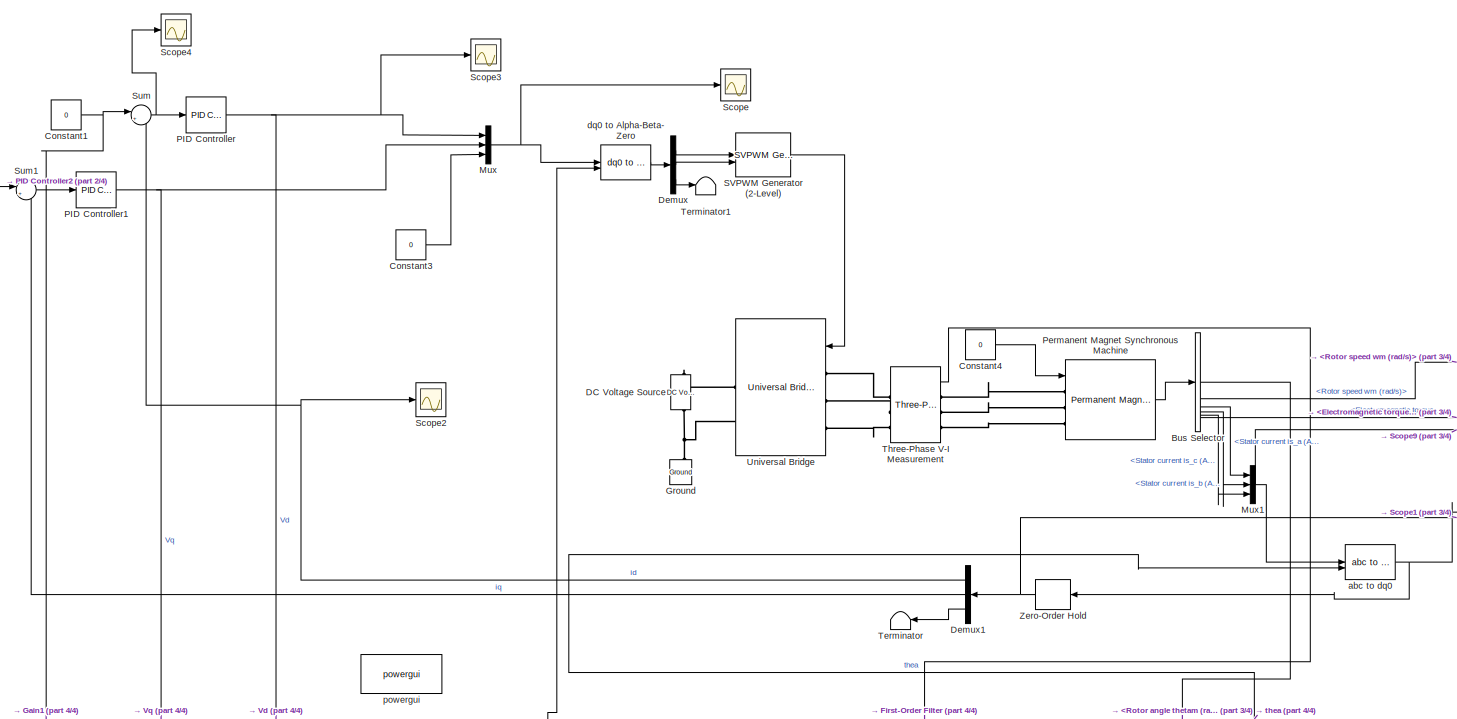
[diagram: root canvas - part 1/4, top center region]
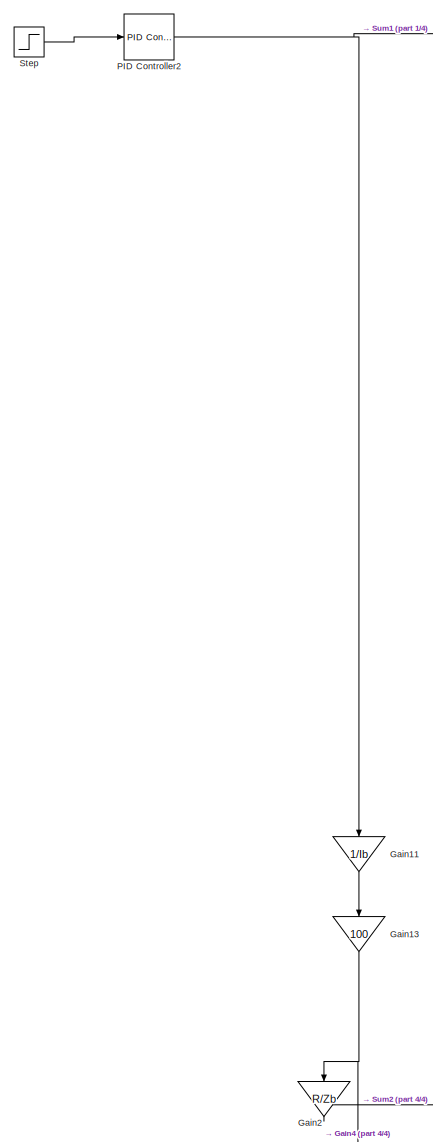
[diagram: root canvas - part 2/4, left side, full height]
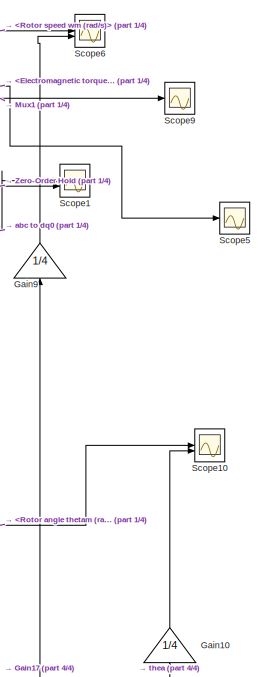
[diagram: root canvas - part 3/4, middle right region]
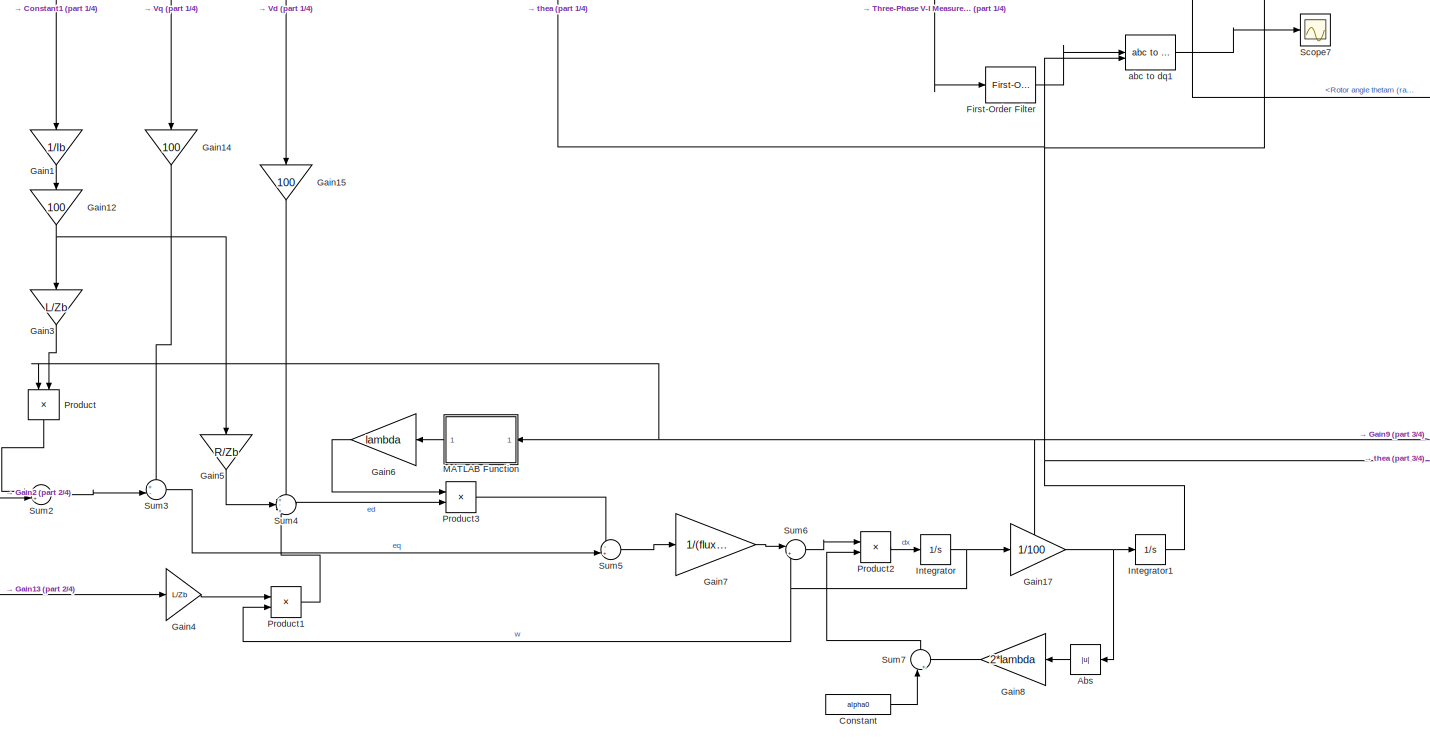
[diagram: root canvas - part 4/4, bottom center region]
MODEL slx_28778b5169e3
KIND model
CONFIG AbsTol = auto
CONFIG EnableMultiTasking = off
CONFIG FixedStep = 0.0000001
CONFIG MaxStep = auto
CONFIG MinStep = auto
CONFIG RelTol = 1e-3
CONFIG SampleTimeConstraint = Unconstrained
CONFIG SolverName = ode23
CONFIG StartTime = 0.0
CONFIG StopTime = 0.4
BLOCK [Abs] Abs
  NameLocation = top
  SaturateOnIntegerOverflow = off
  ZeroCross = off
BLOCK [BusSelector] Bus Selector
  OutputSignals = Rotor angle thetam (rad),Rotor speed wm (rad/s),Stator current is_a (A),Stator current is_b (A),Stator current is_c (A),Electromagnetic torque Te (N*m)
BLOCK [Constant] Constant
  Value = alpha0
BLOCK [Constant] Constant1
  Value = 0
BLOCK [Constant] Constant3
  Value = 0
BLOCK [Constant] Constant4
  Value = 0
BLOCK [Reference] DC Voltage Source  REF=spsDCVoltageSourceLib/DC Voltage Source
  LibrarySourceBlock = sps_lib/Sources/DC Voltage Source
  SourceBlock = spsDCVoltageSourceLib/DC Voltage Source
  SourceType = DC Voltage Source
BLOCK [Demux] Demux
  Outputs = 3
BLOCK [Demux] Demux1
  NameLocation = top
  Outputs = 3
BLOCK [Reference] First-Order Filter  REF=spsFirstOrderFilterLib/First-Order
Filter
  LibrarySourceBlock = sps_lib/Control/Filters/First-Order\nFilter
  SourceBlock = spsFirstOrderFilterLib/First-Order\nFilter
  SourceType = First-Order Filter
BLOCK [Gain] Gain1
  Gain = 1/Ib
  NameLocation = left
BLOCK [Gain] Gain10
  Gain = 1/4
  NameLocation = right
BLOCK [Gain] Gain11
  Gain = 1/Ib
  NameLocation = left
BLOCK [Gain] Gain12
  Gain = 100
  NameLocation = left
BLOCK [Gain] Gain13
  Gain = 100
  NameLocation = left
BLOCK [Gain] Gain14
  Gain = 100
  NameLocation = left
BLOCK [Gain] Gain15
  Gain = 100
  NameLocation = left
BLOCK [Gain] Gain17
  Gain = 1/100
BLOCK [Gain] Gain2
  Gain = R/Zb
  NameLocation = left
BLOCK [Gain] Gain3
  Gain = L/Zb
  NameLocation = left
BLOCK [Gain] Gain4
  Gain = L/Zb
BLOCK [Gain] Gain5
  Gain = R/Zb
  NameLocation = left
BLOCK [Gain] Gain6
  Gain = lambda
  NameLocation = top
BLOCK [Gain] Gain7
  Gain = 1/(flux/Fb)
BLOCK [Gain] Gain8
  Gain = 2*lambda
  NameLocation = top
BLOCK [Gain] Gain9
  Gain = 1/4
  NameLocation = right
BLOCK [Reference] Ground  REF=spsGroundLib/Ground
  LibrarySourceBlock = sps_lib/Utilities/Ground
  NameLocation = right
  SourceBlock = spsGroundLib/Ground
  SourceType = Ground
BLOCK [Integrator] Integrator
BLOCK [Integrator] Integrator1
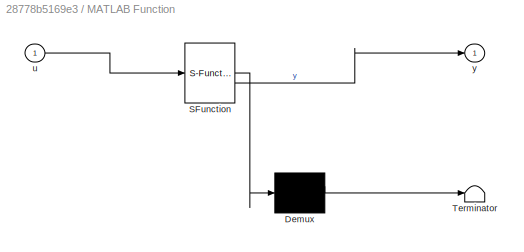
BLOCK [SubSystem] MATLAB Function
  ErrorFcn = Stateflow.Translate.translate
  NameLocation = top
  PermitHierarchicalResolution = ExplicitOnly
  SFBlockType = MATLAB Function
  TreatAsAtomicUnit = on
BLOCK [Demux] MATLAB Function/ Demux 
  Outputs = 1
BLOCK [S-Function] MATLAB Function/ SFunction 
  EnableBusSupport = on
  FunctionName = sf_sfun
  PortCounts = [1 2]
  SFcnIsStateOwnerBlock = off
  SFunctionDeploymentMode = off
  Tag = Stateflow S-Function 2
BLOCK [Terminator] MATLAB Function/ Terminator 
BLOCK [Inport] MATLAB Function/u
BLOCK [Outport] MATLAB Function/y
BLOCK [Mux] Mux
  DisplayOption = bar
  Inputs = 3
BLOCK [Mux] Mux1
  DisplayOption = bar
  Inputs = 3
BLOCK [Reference] PID Controller  REF=slpidlib/PID Controller
  LibrarySourceBlock = simulink/Continuous/PID Controller
  SourceBlock = slpidlib/PID Controller
  SourceType = PID 1dof
BLOCK [Reference] PID Controller1  REF=slpidlib/PID Controller
  LibrarySourceBlock = simulink/Continuous/PID Controller
  SourceBlock = slpidlib/PID Controller
  SourceType = PID 1dof
BLOCK [Reference] PID Controller2  REF=slpidlib/PID Controller
  LibrarySourceBlock = simulink/Continuous/PID Controller
  SourceBlock = slpidlib/PID Controller
  SourceType = PID 1dof
BLOCK [Reference] Permanent Magnet Synchronous Machine  REF=spsPermanentMagnetSynchronousMachineLib/Permanent Magnet
Synchronous Machine
  LibrarySourceBlock = sps_lib/Electrical Machines/Permanent Magnet\nSynchronous Machine
  SourceBlock = spsPermanentMagnetSynchronousMachineLib/Permanent Magnet\nSynchronous Machine
  SourceType = Permanent Magnet Synchronous Machine
BLOCK [Product] Product
  NameLocation = left
BLOCK [Product] Product1
BLOCK [Product] Product2
BLOCK [Product] Product3
BLOCK [Reference] SVPWM Generator (2-Level)  REF=spsSVPWMGenerator2LevelLib/SVPWM Generator
(2-Level)
  LibrarySourceBlock = sps_lib/Power Electronics/Power Electronics Control/SVPWM Generator\n(2-Level)
  SourceBlock = spsSVPWMGenerator2LevelLib/SVPWM Generator\n(2-Level)
  SourceType = SVPWM Generator (2-Level)
BLOCK [Scope] Scope
  Floating = off
  NumInputPorts = 1
  ScopeSpecificationString = Simulink.scopes.TimeScopeBlockCfg('CurrentConfiguration', extmgr.ConfigurationSet(extmgr.Configuration('Core','General UI',true),extmgr.Configuration('Core','Source UI',true),extmgr.Configuration('Sources','WiredSimulink',true),extmgr.Configuration('Visuals','Time Domain',true,'SerializedDisplays',{struct('MinYLimReal','-0.1402','MaxYLimReal','1.12669','YLabelReal','','MinYLimMag','0.00000','MaxYL...<+1740ch>
BLOCK [Scope] Scope1
  Floating = off
  NumInputPorts = 2
  ScopeSpecificationString = Simulink.scopes.TimeScopeBlockCfg('CurrentConfiguration', extmgr.ConfigurationSet(extmgr.Configuration('Core','General UI',true),extmgr.Configuration('Core','Source UI',true),extmgr.Configuration('Sources','WiredSimulink',true,'DataLoggingVariableName','ScopeData1'),extmgr.Configuration('Visuals','Time Domain',true,'SerializedDisplays',{struct('MinYLimReal','-7.16593','MaxYLimReal','11.77218','YLa...<+1999ch>
BLOCK [Scope] Scope10
  Floating = off
  NumInputPorts = 2
  ScopeSpecificationString = Simulink.scopes.TimeScopeBlockCfg('CurrentConfiguration', extmgr.ConfigurationSet(extmgr.Configuration('Core','General UI',true),extmgr.Configuration('Core','Source UI',true),extmgr.Configuration('Sources','WiredSimulink',true,'DataLoggingVariableName','ScopeData3'),extmgr.Configuration('Visuals','Time Domain',true,'SerializedDisplays',{struct('MinYLimReal','-0.92103','MaxYLimReal','2.23735','YLab...<+1800ch>
BLOCK [Scope] Scope2
  Floating = off
  NumInputPorts = 1
  ScopeSpecificationString = Simulink.scopes.TimeScopeBlockCfg('CurrentConfiguration', extmgr.ConfigurationSet(extmgr.Configuration('Core','General UI',true),extmgr.Configuration('Core','Source UI',true),extmgr.Configuration('Sources','WiredSimulink',true,'DataLoggingVariableName','ScopeData2'),extmgr.Configuration('Visuals','Time Domain',true,'SerializedDisplays',{struct('MinYLimReal','-2.48857','MaxYLimReal','2.68838','YLab...<+1599ch>
BLOCK [Scope] Scope3
  Floating = off
  NumInputPorts = 1
  ScopeSpecificationString = Simulink.scopes.TimeScopeBlockCfg('CurrentConfiguration', extmgr.ConfigurationSet(extmgr.Configuration('Core','General UI',true),extmgr.Configuration('Core','Source UI',true),extmgr.Configuration('Sources','WiredSimulink',true,'DataLoggingVariableName','ScopeData3'),extmgr.Configuration('Visuals','Time Domain',true,'SerializedDisplays',{struct('MinYLimReal','-0.06318','MaxYLimReal','0.04336','YLab...<+1655ch>
BLOCK [Scope] Scope4
  Floating = off
  NumInputPorts = 1
  ScopeSpecificationString = Simulink.scopes.TimeScopeBlockCfg('CurrentConfiguration', extmgr.ConfigurationSet(extmgr.Configuration('Core','General UI',true),extmgr.Configuration('Core','Source UI',true),extmgr.Configuration('Sources','WiredSimulink',true,'DataLoggingVariableName','ScopeData4'),extmgr.Configuration('Visuals','Time Domain',true,'SerializedDisplays',{struct('MinYLimReal','-0.26989','MaxYLimReal','5.58554','YLab...<+1585ch>
BLOCK [Scope] Scope5
  Floating = off
  NumInputPorts = 1
  ScopeSpecificationString = Simulink.scopes.TimeScopeBlockCfg('CurrentConfiguration', extmgr.ConfigurationSet(extmgr.Configuration('Core','General UI',true),extmgr.Configuration('Core','Source UI',true),extmgr.Configuration('Sources','WiredSimulink',true,'DataLoggingVariableName','ScopeData6'),extmgr.Configuration('Visuals','Time Domain',true,'SerializedDisplays',{struct('MinYLimReal','-0.41633','MaxYLimReal','0.25237','YLab...<+1465ch>
BLOCK [Scope] Scope6
  Floating = off
  NumInputPorts = 2
  ScopeSpecificationString = Simulink.scopes.TimeScopeBlockCfg('CurrentConfiguration', extmgr.ConfigurationSet(extmgr.Configuration('Core','General UI',true),extmgr.Configuration('Core','Source UI',true),extmgr.Configuration('Sources','WiredSimulink',true,'DataLoggingVariableName','ScopeData7'),extmgr.Configuration('Visuals','Time Domain',true,'SerializedDisplays',{struct('MinYLimReal','-38.7932','MaxYLimReal','22.31768','YLa...<+1508ch>
BLOCK [Scope] Scope7
  Floating = off
  NumInputPorts = 1
  ScopeSpecificationString = Simulink.scopes.TimeScopeBlockCfg('CurrentConfiguration', extmgr.ConfigurationSet(extmgr.Configuration('Core','General UI',true),extmgr.Configuration('Core','Source UI',true),extmgr.Configuration('Sources','WiredSimulink',true,'DataLoggingVariableName','ScopeData1'),extmgr.Configuration('Visuals','Time Domain',true,'SerializedDisplays',{struct('MinYLimReal','-1.59347','MaxYLimReal','13.66254','YLa...<+1647ch>
BLOCK [Scope] Scope9
  Floating = off
  NumInputPorts = 1
  ScopeSpecificationString = Simulink.scopes.TimeScopeBlockCfg('CurrentConfiguration', extmgr.ConfigurationSet(extmgr.Configuration('Core','General UI',true),extmgr.Configuration('Core','Source UI',true),extmgr.Configuration('Sources','WiredSimulink',true,'DataLoggingVariableName','ScopeData3'),extmgr.Configuration('Visuals','Time Domain',true,'SerializedDisplays',{struct('MinYLimReal','-2.40597','MaxYLimReal','1.75212','YLab...<+1632ch>
BLOCK [Step] Step
  After = -5
  Before = 5
  SampleTime = 0
  Time = 0.1
BLOCK [Sum] Sum
  Inputs = |+-
BLOCK [Sum] Sum1
  Inputs = |+-
BLOCK [Sum] Sum2
  Inputs = |++
BLOCK [Sum] Sum3
  Inputs = +-|
BLOCK [Sum] Sum4
  Inputs = +-|+
BLOCK [Sum] Sum5
  Inputs = -+|
BLOCK [Sum] Sum6
  Inputs = |+-
BLOCK [Sum] Sum7
  Inputs = |++
  NameLocation = right
BLOCK [Terminator] Terminator
  NameLocation = top
BLOCK [Terminator] Terminator1
BLOCK [Reference] Three-Phase V-I Measurement  REF=spsThreePhaseVIMeasurementLib/Three-Phase
V-I Measurement
  LibrarySourceBlock = sps_lib/Sensors and Measurements/Three-Phase\nV-I Measurement
  SourceBlock = spsThreePhaseVIMeasurementLib/Three-Phase\nV-I Measurement
  SourceType = Three-Phase VI Measurement
BLOCK [Reference] Universal Bridge  REF=spsUniversalBridgeLib/Universal Bridge
  LibrarySourceBlock = sps_lib/Power Electronics/Universal Bridge
  NameLocation = top
  SourceBlock = spsUniversalBridgeLib/Universal Bridge
  SourceType = Universal Bridge
BLOCK [ZeroOrderHold] Zero-Order Hold
  NameLocation = top
  SampleTime = 0.000025
BLOCK [Reference] abc to dq0  REF=spsabctodq0Lib/abc to dq0
  LibrarySourceBlock = sps_lib/Control/abc to dq0
  SourceBlock = spsabctodq0Lib/abc to dq0
  SourceType = abc to dq0 Transformation
BLOCK [Reference] abc to dq1  REF=spsabctodq0Lib/abc to dq0
  LibrarySourceBlock = sps_lib/Control/abc to dq0
  SourceBlock = spsabctodq0Lib/abc to dq0
  SourceType = abc to dq0 Transformation
BLOCK [Reference] dq0 to Alpha-Beta-Zero  REF=spsdq0toAlphaBetaZeroLib/dq0 to
Alpha-Beta-Zero
  LibrarySourceBlock = sps_lib/Control/dq0 to\nAlpha-Beta-Zero
  SourceBlock = spsdq0toAlphaBetaZeroLib/dq0 to\nAlpha-Beta-Zero
  SourceType = dq0 to Alpha-Beta-Zero Transformation
BLOCK [Reference] powergui  REF=spspowerguiLib/powergui
  Priority = 1
  SourceBlock = spspowerguiLib/powergui
  SourceType = PSB option menu block
LINE Abs:1 -> Gain8:1
LINE Bus Selector:1 -> Scope10:1
LINE Bus Selector:2 -> Scope6:1
LINE Bus Selector:3 -> Mux1:1
LINE Bus Selector:4 -> Mux1:2
LINE Bus Selector:5 -> Mux1:3
LINE Bus Selector:6 -> Scope5:1
NET Constant1:1 -> Gain1:1, Sum:1
LINE Constant3:1 -> Mux:3
LINE Constant4:1 -> Permanent Magnet Synchronous Machine:1
LINE Constant:1 -> Sum7:1
NET Demux1:1 -> Scope2:1, Sum:2
LINE Demux1:2 -> Sum1:2
LINE Demux1:3 -> Terminator:1
LINE Demux:1 -> SVPWM Generator (2-Level):1
LINE Demux:2 -> SVPWM Generator (2-Level):2
LINE Demux:3 -> Terminator1:1
LINE First-Order Filter:1 -> abc to dq1:1
LINE Gain10:1 -> Scope10:2
LINE Gain11:1 -> Gain13:1
NET Gain12:1 -> Gain3:1, Gain5:1
NET Gain13:1 -> Gain2:1, Gain4:1
LINE Gain14:1 -> Sum3:1
LINE Gain15:1 -> Sum4:1
NET Gain17:1 -> Abs:1, Gain9:1, Integrator1:1, MATLAB Function:1, Product:1
LINE Gain1:1 -> Gain12:1
LINE Gain2:1 -> Sum2:2
LINE Gain3:1 -> Product:2
LINE Gain4:1 -> Product1:1
LINE Gain5:1 -> Sum4:2
LINE Gain6:1 -> Product3:1
LINE Gain7:1 -> Sum6:1
LINE Gain8:1 -> Sum7:2
LINE Gain9:1 -> Scope6:2
NET Integrator1:1 -> Gain10:1, abc to dq0:2, abc to dq1:2, dq0 to Alpha-Beta-Zero:2
NET Integrator:1 -> Gain17:1, Product1:2, Sum6:2
LINE MATLAB Function:1 -> Gain6:1
NET Mux1:1 -> Scope9:1, abc to dq0:1
NET Mux:1 -> Scope:1, dq0 to Alpha-Beta-Zero:1
NET PID Controller1:1 -> Gain14:1, Mux:2
NET PID Controller2:1 -> Gain11:1, Sum1:1
NET PID Controller:1 -> Gain15:1, Mux:1, Scope3:1
LINE Permanent Magnet Synchronous Machine:1 -> Bus Selector:1
LINE Product1:1 -> Sum4:3
LINE Product2:1 -> Integrator:1
LINE Product3:1 -> Sum5:1
LINE Product:1 -> Sum2:1
LINE SVPWM Generator (2-Level):1 -> Universal Bridge:1
LINE Step:1 -> PID Controller2:1
LINE Sum1:1 -> PID Controller1:1
LINE Sum2:1 -> Sum3:2
LINE Sum3:1 -> Sum5:2
LINE Sum4:1 -> Product3:2
LINE Sum5:1 -> Gain7:1
LINE Sum6:1 -> Product2:1
LINE Sum7:1 -> Product2:2
NET Sum:1 -> PID Controller:1, Scope4:1
LINE Three-Phase V-I Measurement:1 -> First-Order Filter:1
NET Zero-Order Hold:1 -> Demux1:1, Scope1:2
NET abc to dq0:1 -> Scope1:1, Zero-Order Hold:1
LINE abc to dq1:1 -> Scope7:1
LINE dq0 to Alpha-Beta-Zero:1 -> Demux:1
PNET net1: DC Voltage Source:LConn1 -- Ground:LConn1 -- Universal Bridge:RConn2
PLINE DC Voltage Source:RConn1 -- Universal Bridge:RConn1
PLINE Permanent Magnet Synchronous Machine:LConn1 -- Three-Phase V-I Measurement:RConn1
PLINE Permanent Magnet Synchronous Machine:LConn2 -- Three-Phase V-I Measurement:RConn2
PLINE Permanent Magnet Synchronous Machine:LConn3 -- Three-Phase V-I Measurement:RConn3
PLINE Three-Phase V-I Measurement:LConn1 -- Universal Bridge:LConn1
PLINE Three-Phase V-I Measurement:LConn2 -- Universal Bridge:LConn2
PLINE Three-Phase V-I Measurement:LConn3 -- Universal Bridge:LConn3
note: NET lines group one-source signal fan-out (src -> all destinations, sorted); 1:1 wires keep LINE; PNET lines group multi-terminal physical nets as a canonical sorted terminal list (undirected conserving connections); 2-terminal nets keep the pairwise PLINE form
CHART MATLAB Function states=1 transitions=1
  STATE_LABEL 'eML_blk_kernel()'
  STATE_LABEL 'SCRIPT:\nfunction y = fcn(u)\n\n    if u > 0\n        y =1;\n    else \n        y = -1;\n    end \nend '
CHART  states=0 transitions=0
